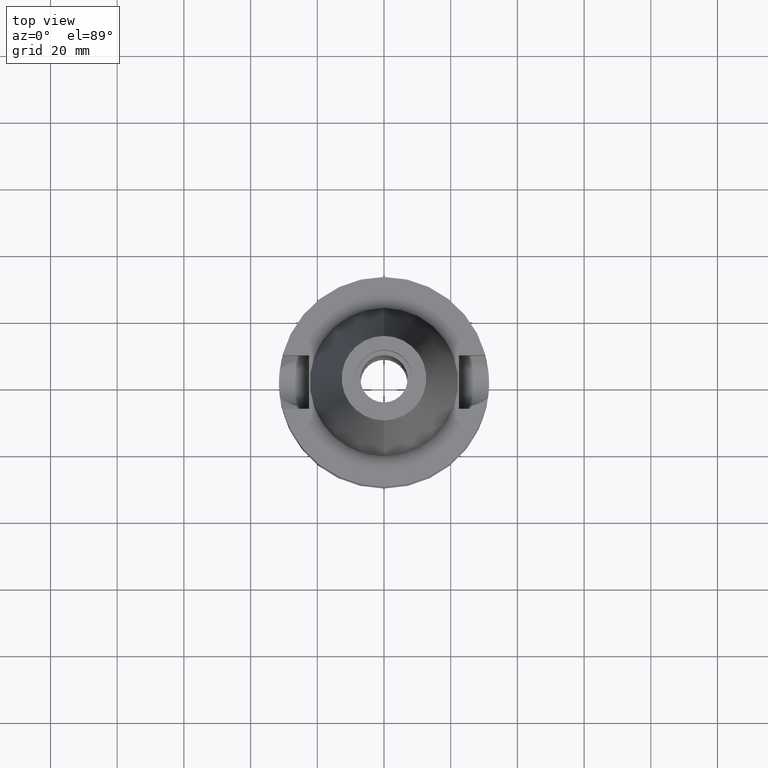
[diagram: clean part render]
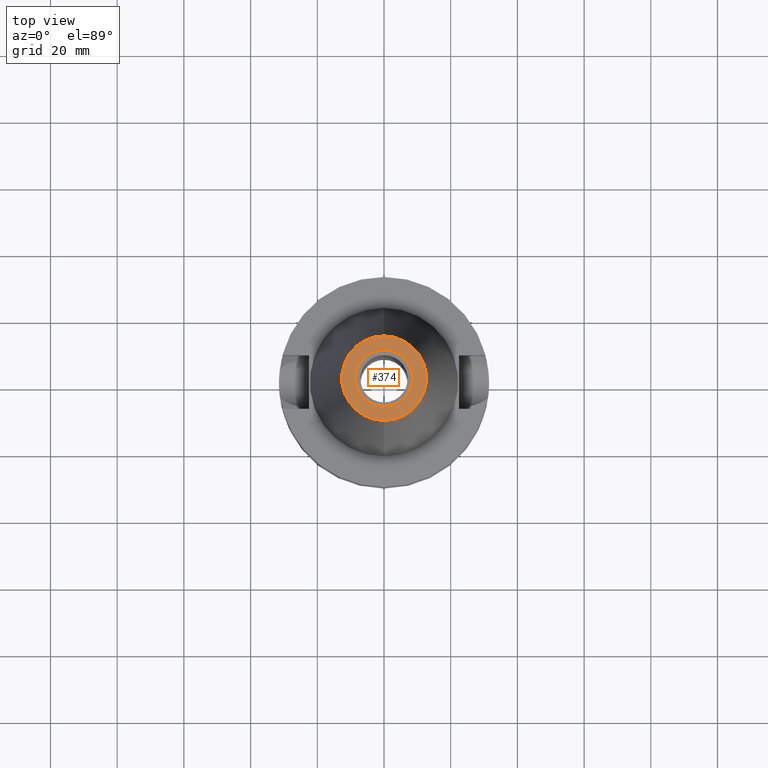
[diagram: same view with one face highlighted and labeled with its STEP entity id]
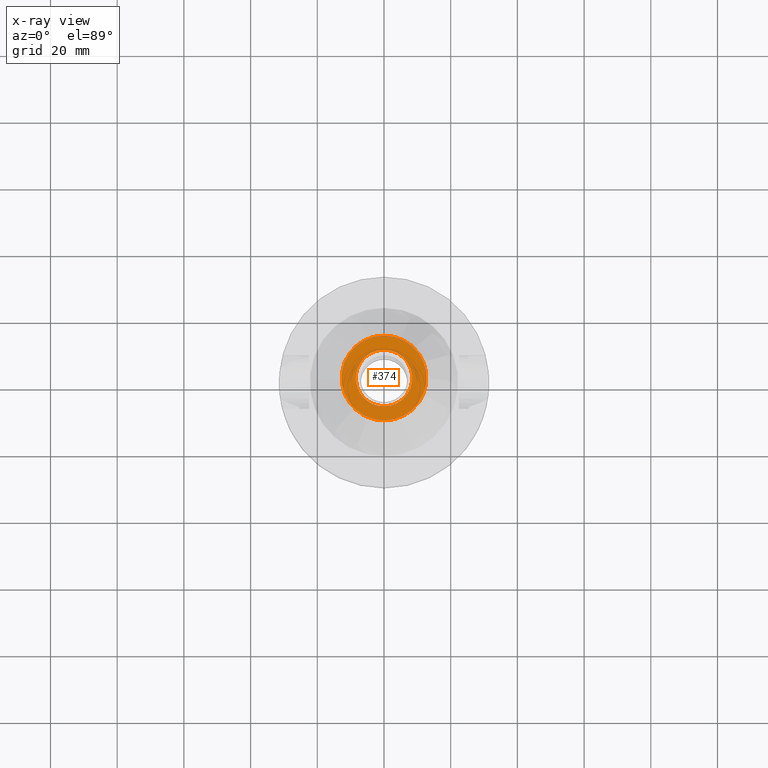
[diagram: x-ray of the same camera — body ghosted, the highlighted face saturated]
A machine part, top view. The second image highlights one B-rep face of the part: STEP entity #374.
The next image is the same camera in x-ray: the body ghosted, the highlighted face saturated — about 0% of this face is hidden behind the body in this view.
In plain terms, the highlighted planar face has unit normal (0, 0, -1).
Its self-contained STEP definition (entity closure, byte-faithful):
#39 = CARTESIAN_POINT ( 'NONE',  ( 0.0000000000000000000, 0.0000000000000000000, 65.40000000000000568 ) ) ;
#121 = CARTESIAN_POINT ( 'NONE',  ( 0.0000000000000000000, 0.0000000000000000000, 65.40000000000000568 ) ) ;
#191 = CARTESIAN_POINT ( 'NONE',  ( 0.0000000000000000000, -12.68766899429999917, 65.40000000000000568 ) ) ;
#267 = ORIENTED_EDGE ( 'NONE', *, *, #984, .F. ) ;
#278 = CARTESIAN_POINT ( 'NONE',  ( 0.0000000000000000000, 12.68766899429999917, 65.40000000000000568 ) ) ;
#374 = ADVANCED_FACE ( 'NONE', ( #1789, #1808 ), #2992, .F. ) ;
#537 = DIRECTION ( 'NONE',  ( 0.0000000000000000000, -1.000000000000000000, 0.0000000000000000000 ) ) ;
#541 = VERTEX_POINT ( 'NONE', #819 ) ;
#565 = VERTEX_POINT ( 'NONE', #191 ) ;
#601 = AXIS2_PLACEMENT_3D ( 'NONE', #39, #987, #1172 ) ;
#697 = DIRECTION ( 'NONE',  ( 0.0000000000000000000, 1.000000000000000000, 0.0000000000000000000 ) ) ;
#740 = VERTEX_POINT ( 'NONE', #2399 ) ;
#813 = AXIS2_PLACEMENT_3D ( 'NONE', #2117, #3103, #697 ) ;
#819 = CARTESIAN_POINT ( 'NONE',  ( 0.0000000000000000000, 8.500000000000000000, 65.40000000000000568 ) ) ;
#954 = CIRCLE ( 'NONE', #813, 12.68766899429999917 ) ;
#984 = EDGE_CURVE ( 'NONE', #565, #2362, #2397, .T. ) ;
#987 = DIRECTION ( 'NONE',  ( 0.0000000000000000000, 0.0000000000000000000, 1.000000000000000000 ) ) ;
#1036 = DIRECTION ( 'NONE',  ( 0.0000000000000000000, 0.0000000000000000000, -1.000000000000000000 ) ) ;
#1048 = DIRECTION ( 'NONE',  ( 0.0000000000000000000, 0.0000000000000000000, 1.000000000000000000 ) ) ;
#1147 = ORIENTED_EDGE ( 'NONE', *, *, #1249, .F. ) ;
#1172 = DIRECTION ( 'NONE',  ( 0.0000000000000000000, 1.000000000000000000, 0.0000000000000000000 ) ) ;
#1249 = EDGE_CURVE ( 'NONE', #740, #541, #1895, .T. ) ;
#1434 = DIRECTION ( 'NONE',  ( 0.0000000000000000000, -1.000000000000000000, 0.0000000000000000000 ) ) ;
#1540 = ORIENTED_EDGE ( 'NONE', *, *, #2363, .F. ) ;
#1612 = CARTESIAN_POINT ( 'NONE',  ( 0.0000000000000000000, 0.0000000000000000000, 65.40000000000000568 ) ) ;
#1743 = DIRECTION ( 'NONE',  ( 0.0000000000000000000, -1.000000000000000000, 0.0000000000000000000 ) ) ;
#1789 = FACE_OUTER_BOUND ( 'NONE', #1952, .T. ) ;
#1808 = FACE_BOUND ( 'NONE', #2921, .T. ) ;
#1895 = CIRCLE ( 'NONE', #2866, 8.500000000000000000 ) ;
#1952 = EDGE_LOOP ( 'NONE', ( #2034, #267 ) ) ;
#2034 = ORIENTED_EDGE ( 'NONE', *, *, #2965, .F. ) ;
#2117 = CARTESIAN_POINT ( 'NONE',  ( 0.0000000000000000000, 0.0000000000000000000, 65.40000000000000568 ) ) ;
#2362 = VERTEX_POINT ( 'NONE', #278 ) ;
#2363 = EDGE_CURVE ( 'NONE', #541, #740, #2964, .T. ) ;
#2368 = DIRECTION ( 'NONE',  ( 0.0000000000000000000, 0.0000000000000000000, -1.000000000000000000 ) ) ;
#2397 = CIRCLE ( 'NONE', #2814, 12.68766899429999917 ) ;
#2399 = CARTESIAN_POINT ( 'NONE',  ( 0.0000000000000000000, -8.500000000000000000, 65.40000000000000568 ) ) ;
#2759 = AXIS2_PLACEMENT_3D ( 'NONE', #121, #1036, #1743 ) ;
#2814 = AXIS2_PLACEMENT_3D ( 'NONE', #1612, #2368, #1434 ) ;
#2866 = AXIS2_PLACEMENT_3D ( 'NONE', #2939, #1048, #537 ) ;
#2921 = EDGE_LOOP ( 'NONE', ( #1540, #1147 ) ) ;
#2939 = CARTESIAN_POINT ( 'NONE',  ( 0.0000000000000000000, 0.0000000000000000000, 65.40000000000000568 ) ) ;
#2964 = CIRCLE ( 'NONE', #601, 8.500000000000000000 ) ;
#2965 = EDGE_CURVE ( 'NONE', #2362, #565, #954, .T. ) ;
#2992 = PLANE ( 'NONE',  #2759 ) ;
#3103 = DIRECTION ( 'NONE',  ( 0.0000000000000000000, 0.0000000000000000000, -1.000000000000000000 ) ) ;